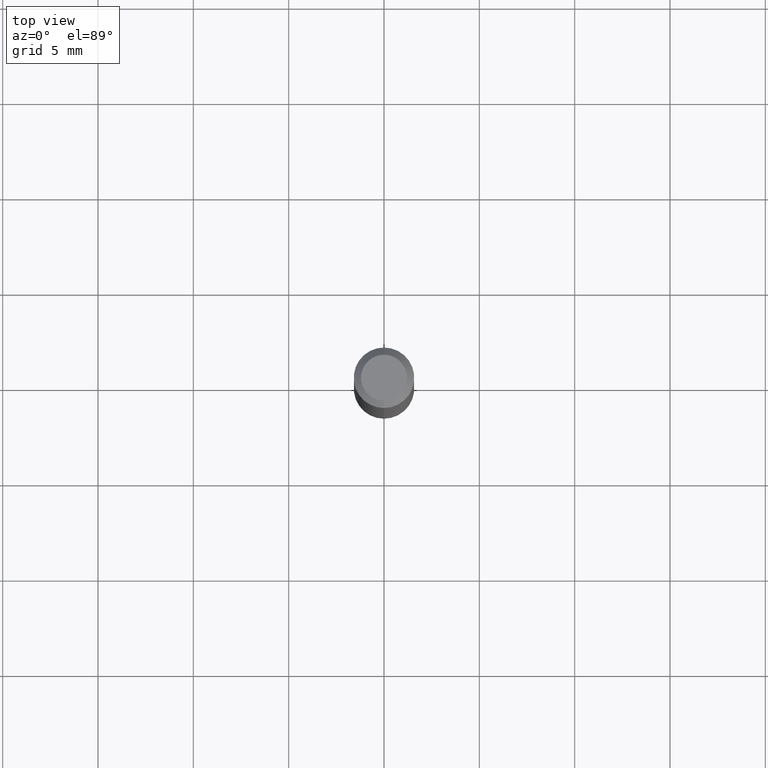
[diagram: clean part render]
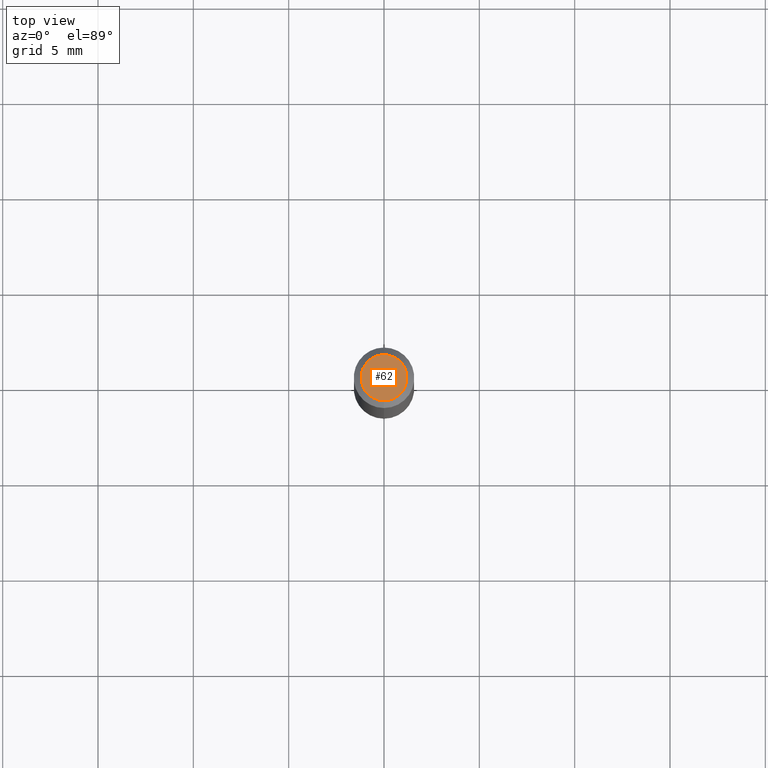
[diagram: same view with one face highlighted and labeled with its STEP entity id]
A machine part, top view. The second image highlights one B-rep face of the part: STEP entity #62.
In plain terms, the highlighted planar face has unit normal (0, -0, -1).
Its self-contained STEP definition (entity closure, byte-faithful):
#28 = FACE_OUTER_BOUND ( 'NONE', #375, .T. ) ;
#31 = DIRECTION ( 'NONE',  ( 6.982962677686265922E-15, 1.000000000000000000, -3.491536060866079986E-15 ) ) ;
#56 = DIRECTION ( 'NONE',  ( -6.982962677686265133E-15, -1.000000000000000000, 3.491536060866079986E-15 ) ) ;
#62 = ADVANCED_FACE ( 'NONE', ( #28 ), #426, .F. ) ;
#70 = CARTESIAN_POINT ( 'NONE',  ( 3.316907271900976589E-16, 0.04750000000000000749, -2.925426355988096927E-17 ) ) ;
#126 = CIRCLE ( 'NONE', #329, 0.04750000000000000749 ) ;
#135 = ORIENTED_EDGE ( 'NONE', *, *, #246, .T. ) ;
#142 = ORIENTED_EDGE ( 'NONE', *, *, #314, .T. ) ;
#167 = CARTESIAN_POINT ( 'NONE',  ( -3.773273898774340269E-16, -0.04750000000000000749, 4.390353615536545300E-16 ) ) ;
#197 = CARTESIAN_POINT ( 'NONE',  ( 3.840629472727447874E-16, 0.04750000000000000749, 1.073394357713768884E-16 ) ) ;
#212 = VERTEX_POINT ( 'NONE', #197 ) ;
#235 = DIRECTION ( 'NONE',  ( -2.445430594000756604E-29, 3.491536060866079986E-15, 1.000000000000000000 ) ) ;
#245 = VERTEX_POINT ( 'NONE', #167 ) ;
#246 = EDGE_CURVE ( 'NONE', #245, #212, #126, .T. ) ;
#250 = CARTESIAN_POINT ( 'NONE',  ( -6.680608225847972664E-45, 9.538436538043716084E-31, 2.731873986625157031E-16 ) ) ;
#314 = EDGE_CURVE ( 'NONE', #212, #245, #492, .T. ) ;
#325 = AXIS2_PLACEMENT_3D ( 'NONE', #70, #425, #31 ) ;
#329 = AXIS2_PLACEMENT_3D ( 'NONE', #459, #235, #516 ) ;
#375 = EDGE_LOOP ( 'NONE', ( #142, #135 ) ) ;
#376 = AXIS2_PLACEMENT_3D ( 'NONE', #250, #411, #56 ) ;
#411 = DIRECTION ( 'NONE',  ( -2.445430594000756604E-29, 3.491536060866079986E-15, 1.000000000000000000 ) ) ;
#425 = DIRECTION ( 'NONE',  ( 2.445430594000756323E-29, -3.491536060866079986E-15, -1.000000000000000000 ) ) ;
#426 = PLANE ( 'NONE',  #325 ) ;
#459 = CARTESIAN_POINT ( 'NONE',  ( -6.680608225847972664E-45, 9.538436538043716084E-31, 2.731873986625157031E-16 ) ) ;
#492 = CIRCLE ( 'NONE', #376, 0.04750000000000000749 ) ;
#516 = DIRECTION ( 'NONE',  ( -6.982962677686265133E-15, -1.000000000000000000, 3.491536060866079986E-15 ) ) ;